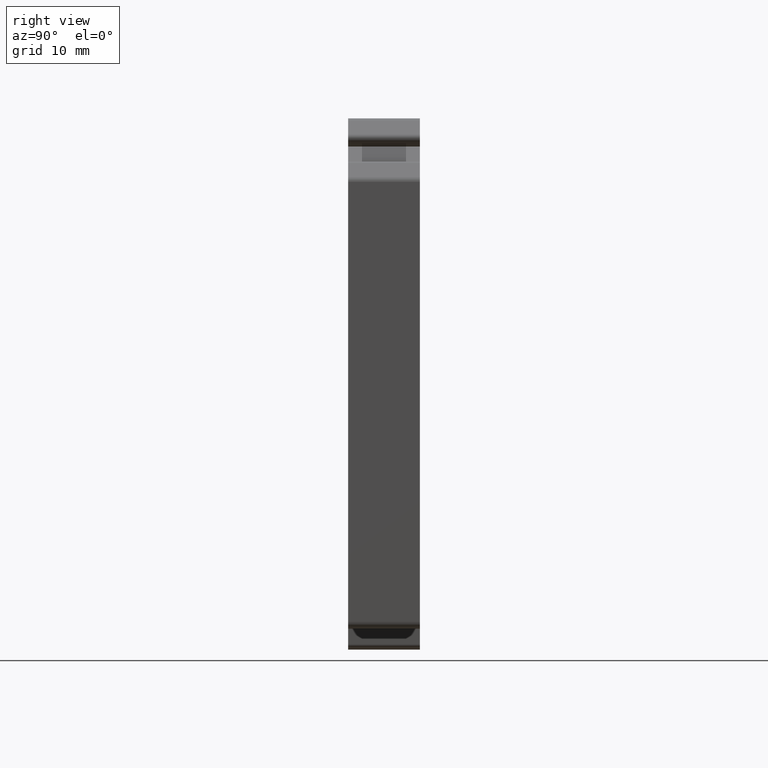
[diagram: clean part render]
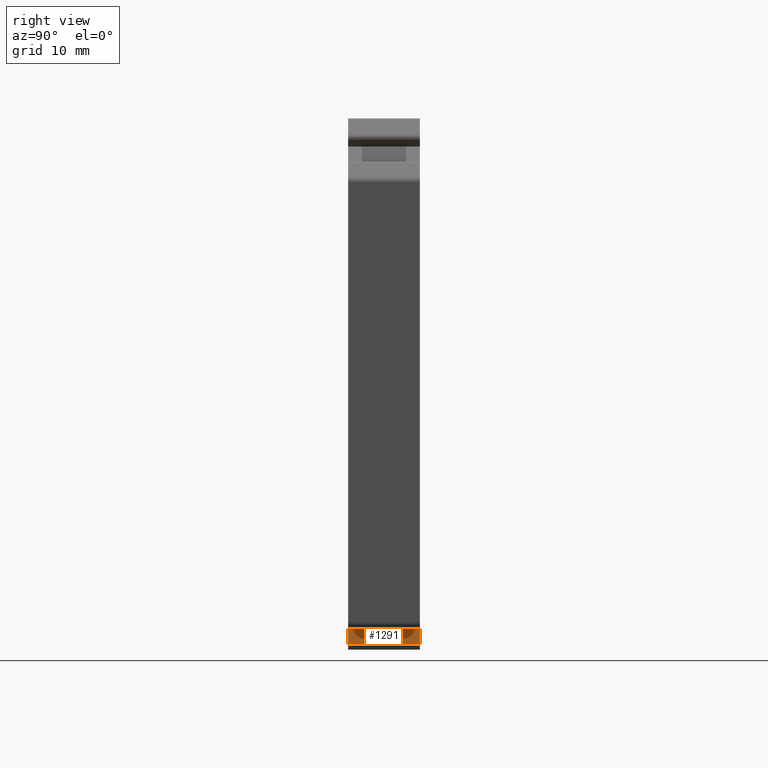
[diagram: same view with one face highlighted and labeled with its STEP entity id]
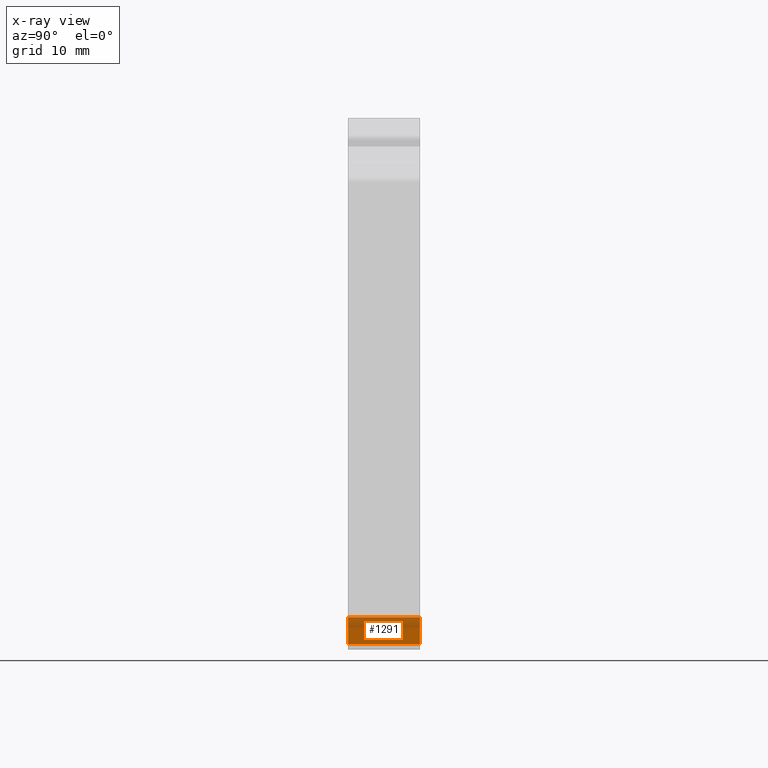
[diagram: x-ray of the same camera — body ghosted, the highlighted face saturated]
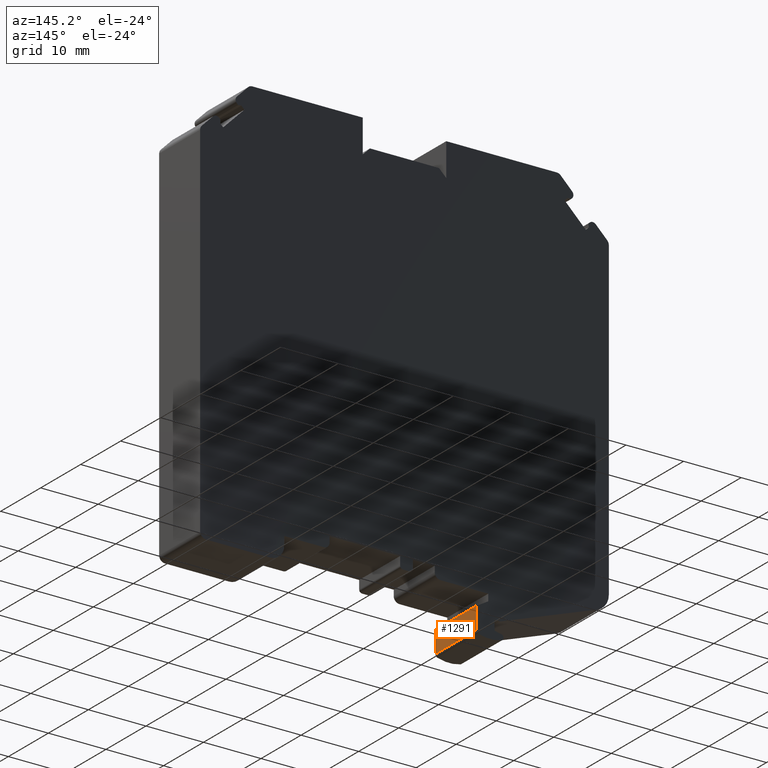
[diagram: same view with one face highlighted and labeled with its STEP entity id]
A machine part, right view. The second image highlights one B-rep face of the part: STEP entity #1291.
The next image is the same camera in x-ray: the body ghosted, the highlighted face saturated — about 43% of this face is hidden behind the body in this view.
A second angle (auxiliary view) of the same face is appended — the face is thin or edge-on in the first view.
In plain terms, the highlighted planar face has unit normal (1, 0, 0).
Its self-contained STEP definition (entity closure, byte-faithful):
#238=ORIENTED_EDGE('',*,*,#576,.F.);
#239=ORIENTED_EDGE('',*,*,#575,.F.);
#240=ORIENTED_EDGE('',*,*,#577,.T.);
#241=ORIENTED_EDGE('',*,*,#578,.T.);
#575=EDGE_CURVE('',#724,#723,#868,.T.);
#576=EDGE_CURVE('',#723,#725,#869,.T.);
#577=EDGE_CURVE('',#724,#726,#870,.T.);
#578=EDGE_CURVE('',#726,#725,#871,.T.);
#723=VERTEX_POINT('',#2032);
#724=VERTEX_POINT('',#2034);
#725=VERTEX_POINT('',#2038);
#726=VERTEX_POINT('',#2040);
#868=LINE('',#2035,#1021);
#869=LINE('',#2037,#1022);
#870=LINE('',#2039,#1023);
#871=LINE('',#2041,#1024);
#1021=VECTOR('',#1658,1000.);
#1022=VECTOR('',#1661,1000.);
#1023=VECTOR('',#1662,1000.);
#1024=VECTOR('',#1663,1000.);
#1114=EDGE_LOOP('',(#238,#239,#240,#241));
#1179=FACE_BOUND('',#1114,.T.);
#1233=PLANE('',#1391);
#1291=ADVANCED_FACE('',(#1179),#1233,.T.);
#1391=AXIS2_PLACEMENT_3D('',#2036,#1659,#1660);
#1658=DIRECTION('',(0.,-1.,0.));
#1659=DIRECTION('',(1.,0.,1.15903221866185E-13));
#1660=DIRECTION('',(1.15903221866185E-13,0.,-1.));
#1661=DIRECTION('',(-1.15903221866185E-13,0.,1.));
#1662=DIRECTION('',(-1.15903221866185E-13,0.,1.));
#1663=DIRECTION('',(0.,-1.,0.));
#2032=CARTESIAN_POINT('',(-12.49940428,0.,-37.114805002419));
#2034=CARTESIAN_POINT('',(-12.49940428,10.25,-37.114805002419));
#2035=CARTESIAN_POINT('',(-12.49940428,10.25,-37.114805002419));
#2036=CARTESIAN_POINT('',(-12.4994042800011,10.25,-33.283253103346));
#2037=CARTESIAN_POINT('',(-12.4994042800011,0.,-33.283253103346));
#2038=CARTESIAN_POINT('',(-12.4994042800011,0.,-33.283253103346));
#2039=CARTESIAN_POINT('',(-12.4994042800011,10.25,-33.283253103346));
#2040=CARTESIAN_POINT('',(-12.4994042800011,10.25,-33.283253103346));
#2041=CARTESIAN_POINT('',(-12.4994042800011,10.25,-33.283253103346));